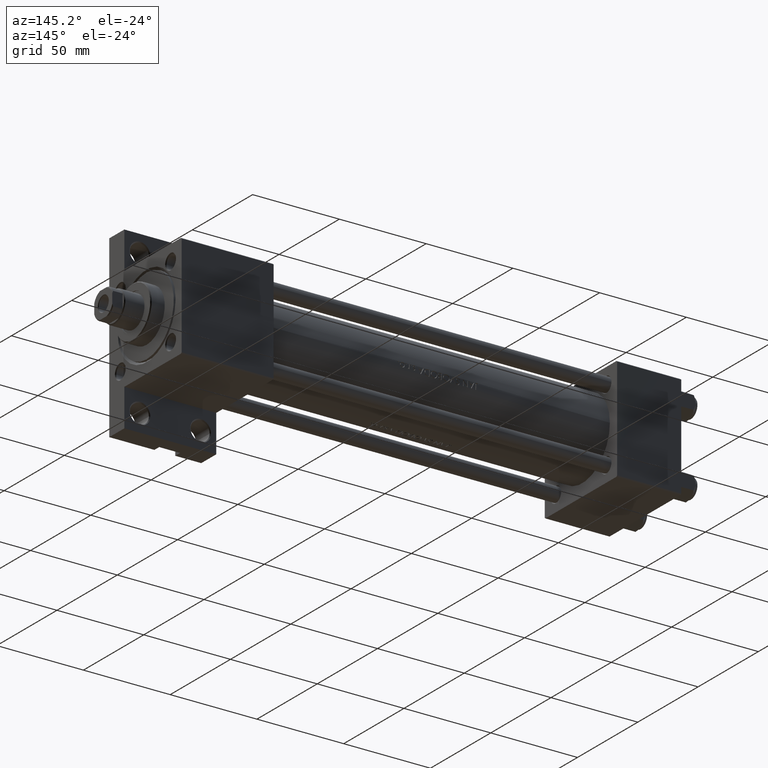
[diagram: clean part render]
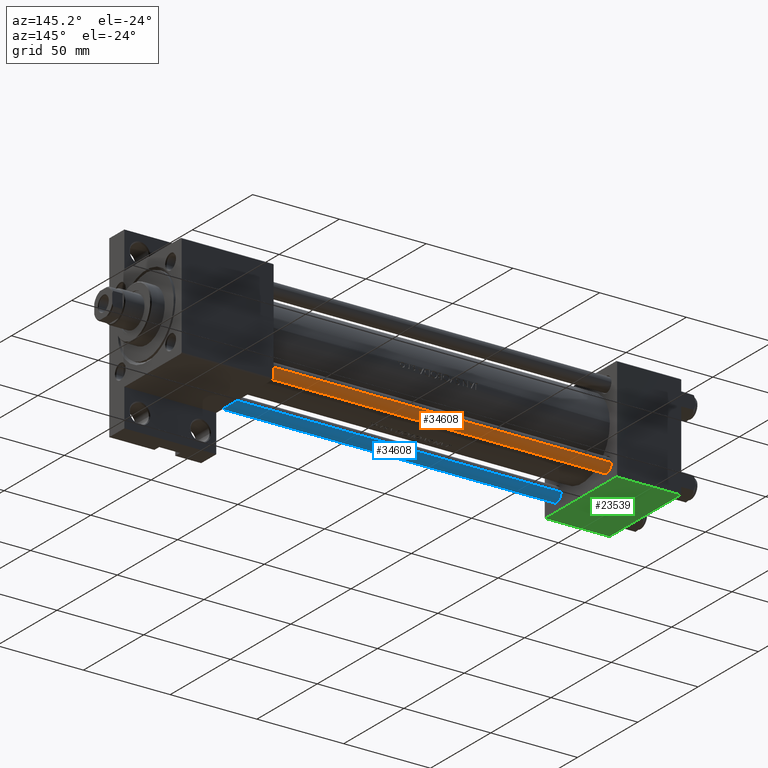
[diagram: same view with three faces highlighted in distinct colors, each labeled with its STEP entity id]
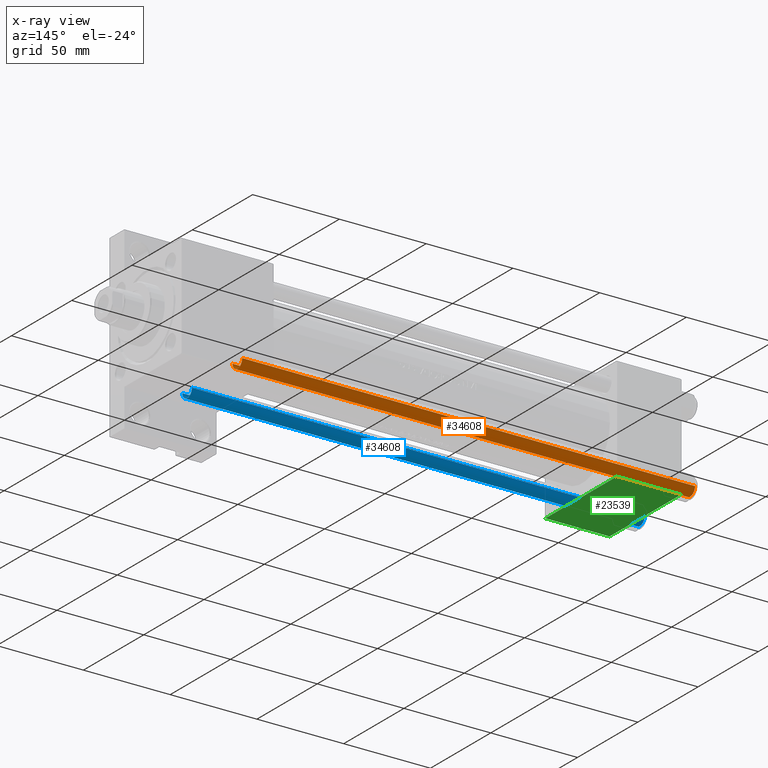
[diagram: x-ray of the same camera — body ghosted, the three highlighted faces saturated]
A machine part, auxiliary view with three faces highlighted in distinct colors.
The next image is the same camera in x-ray (body ghosted, the three faces saturated) — at least one of them is partly hidden behind the body in this view.
Their STEP definitions:

[orange] entity #34608 — the highlighted cylindrical surface (edge-blend (fillet) strip) has radius 4 mm, axis along (-1, -0, 0).
#402 = EDGE_CURVE ( 'NONE', #30187, #19255, #19753, .T. ) ;
#1052 = DIRECTION ( 'NONE',  ( 1.000000000000000000, 0.000000000000000000, 0.000000000000000000 ) ) ;
#3127 = CARTESIAN_POINT ( 'NONE',  ( 4.000000000000000000, 4.898587196589412829E-16, 261.5000000000000000 ) ) ;
#4140 = DIRECTION ( 'NONE',  ( -0.000000000000000000, -0.000000000000000000, 1.000000000000000000 ) ) ;
#4757 = CARTESIAN_POINT ( 'NONE',  ( 0.000000000000000000, 0.000000000000000000, 261.5000000000000000 ) ) ;
#5008 = VERTEX_POINT ( 'NONE', #26827 ) ;
#6126 = DIRECTION ( 'NONE',  ( -1.000000000000000000, 0.000000000000000000, 0.000000000000000000 ) ) ;
#6834 = LINE ( 'NONE', #21864, #14240 ) ;
#7954 = ORIENTED_EDGE ( 'NONE', *, *, #20651, .T. ) ;
#8916 = ORIENTED_EDGE ( 'NONE', *, *, #402, .F. ) ;
#9171 = AXIS2_PLACEMENT_3D ( 'NONE', #37938, #4140, #23377 ) ;
#12328 = CARTESIAN_POINT ( 'NONE',  ( 4.000000000000000000, 4.898587196589412829E-16, 0.5000000000000559552 ) ) ;
#13538 = FACE_OUTER_BOUND ( 'NONE', #16314, .T. ) ;
#13633 = ORIENTED_EDGE ( 'NONE', *, *, #33531, .T. ) ;
#14240 = VECTOR ( 'NONE', #48725, 1000.000000000000000 ) ;
#16048 = VECTOR ( 'NONE', #37535, 1000.000000000000000 ) ;
#16314 = EDGE_LOOP ( 'NONE', ( #8916, #25467, #13633, #7954 ) ) ;
#16983 = DIRECTION ( 'NONE',  ( -0.000000000000000000, -0.000000000000000000, -1.000000000000000000 ) ) ;
#19255 = VERTEX_POINT ( 'NONE', #12328 ) ;
#19753 = LINE ( 'NONE', #30137, #16048 ) ;
#20651 = EDGE_CURVE ( 'NONE', #5008, #19255, #28880, .T. ) ;
#21738 = AXIS2_PLACEMENT_3D ( 'NONE', #43837, #16983, #6126 ) ;
#21864 = CARTESIAN_POINT ( 'NONE',  ( -4.000000000000000000, 0.000000000000000000, 262.0000000000000000 ) ) ;
#23377 = DIRECTION ( 'NONE',  ( 1.000000000000000000, 0.000000000000000000, 0.000000000000000000 ) ) ;
#23747 = DIRECTION ( 'NONE',  ( 0.000000000000000000, 0.000000000000000000, -1.000000000000000000 ) ) ;
#25183 = AXIS2_PLACEMENT_3D ( 'NONE', #4757, #23747, #1052 ) ;
#25467 = ORIENTED_EDGE ( 'NONE', *, *, #28518, .T. ) ;
#26827 = CARTESIAN_POINT ( 'NONE',  ( -4.000000000000000000, 0.000000000000000000, 0.5000000000000559552 ) ) ;
#27809 = CARTESIAN_POINT ( 'NONE',  ( -4.000000000000000000, 0.000000000000000000, 261.5000000000000000 ) ) ;
#28095 = CYLINDRICAL_SURFACE ( 'NONE', #21738, 4.000000000000000000 ) ;
#28518 = EDGE_CURVE ( 'NONE', #30187, #47770, #37790, .T. ) ;
#28880 = CIRCLE ( 'NONE', #9171, 4.000000000000000000 ) ;
#30137 = CARTESIAN_POINT ( 'NONE',  ( 4.000000000000000000, 4.898587196589412829E-16, 262.0000000000000000 ) ) ;
#30187 = VERTEX_POINT ( 'NONE', #3127 ) ;
#33531 = EDGE_CURVE ( 'NONE', #47770, #5008, #6834, .T. ) ;
#34608 = ADVANCED_FACE ( 'NONE', ( #13538 ), #28095, .T. ) ;
#37535 = DIRECTION ( 'NONE',  ( -0.000000000000000000, -0.000000000000000000, -1.000000000000000000 ) ) ;
#37790 = CIRCLE ( 'NONE', #25183, 4.000000000000000000 ) ;
#37938 = CARTESIAN_POINT ( 'NONE',  ( 0.000000000000000000, 0.000000000000000000, 0.5000000000000559552 ) ) ;
#43837 = CARTESIAN_POINT ( 'NONE',  ( 0.000000000000000000, 0.000000000000000000, 262.0000000000000000 ) ) ;
#47770 = VERTEX_POINT ( 'NONE', #27809 ) ;
#48725 = DIRECTION ( 'NONE',  ( -0.000000000000000000, -0.000000000000000000, -1.000000000000000000 ) ) ;

[blue] entity #34608 — the highlighted cylindrical surface (edge-blend (fillet) strip) has radius 4 mm, axis along (1, 0, 0).
#402 = EDGE_CURVE ( 'NONE', #30187, #19255, #19753, .T. ) ;
#1052 = DIRECTION ( 'NONE',  ( 1.000000000000000000, 0.000000000000000000, 0.000000000000000000 ) ) ;
#3127 = CARTESIAN_POINT ( 'NONE',  ( 4.000000000000000000, 4.898587196589412829E-16, 261.5000000000000000 ) ) ;
#4140 = DIRECTION ( 'NONE',  ( -0.000000000000000000, -0.000000000000000000, 1.000000000000000000 ) ) ;
#4757 = CARTESIAN_POINT ( 'NONE',  ( 0.000000000000000000, 0.000000000000000000, 261.5000000000000000 ) ) ;
#5008 = VERTEX_POINT ( 'NONE', #26827 ) ;
#6126 = DIRECTION ( 'NONE',  ( -1.000000000000000000, 0.000000000000000000, 0.000000000000000000 ) ) ;
#6834 = LINE ( 'NONE', #21864, #14240 ) ;
#7954 = ORIENTED_EDGE ( 'NONE', *, *, #20651, .T. ) ;
#8916 = ORIENTED_EDGE ( 'NONE', *, *, #402, .F. ) ;
#9171 = AXIS2_PLACEMENT_3D ( 'NONE', #37938, #4140, #23377 ) ;
#12328 = CARTESIAN_POINT ( 'NONE',  ( 4.000000000000000000, 4.898587196589412829E-16, 0.5000000000000559552 ) ) ;
#13538 = FACE_OUTER_BOUND ( 'NONE', #16314, .T. ) ;
#13633 = ORIENTED_EDGE ( 'NONE', *, *, #33531, .T. ) ;
#14240 = VECTOR ( 'NONE', #48725, 1000.000000000000000 ) ;
#16048 = VECTOR ( 'NONE', #37535, 1000.000000000000000 ) ;
#16314 = EDGE_LOOP ( 'NONE', ( #8916, #25467, #13633, #7954 ) ) ;
#16983 = DIRECTION ( 'NONE',  ( -0.000000000000000000, -0.000000000000000000, -1.000000000000000000 ) ) ;
#19255 = VERTEX_POINT ( 'NONE', #12328 ) ;
#19753 = LINE ( 'NONE', #30137, #16048 ) ;
#20651 = EDGE_CURVE ( 'NONE', #5008, #19255, #28880, .T. ) ;
#21738 = AXIS2_PLACEMENT_3D ( 'NONE', #43837, #16983, #6126 ) ;
#21864 = CARTESIAN_POINT ( 'NONE',  ( -4.000000000000000000, 0.000000000000000000, 262.0000000000000000 ) ) ;
#23377 = DIRECTION ( 'NONE',  ( 1.000000000000000000, 0.000000000000000000, 0.000000000000000000 ) ) ;
#23747 = DIRECTION ( 'NONE',  ( 0.000000000000000000, 0.000000000000000000, -1.000000000000000000 ) ) ;
#25183 = AXIS2_PLACEMENT_3D ( 'NONE', #4757, #23747, #1052 ) ;
#25467 = ORIENTED_EDGE ( 'NONE', *, *, #28518, .T. ) ;
#26827 = CARTESIAN_POINT ( 'NONE',  ( -4.000000000000000000, 0.000000000000000000, 0.5000000000000559552 ) ) ;
#27809 = CARTESIAN_POINT ( 'NONE',  ( -4.000000000000000000, 0.000000000000000000, 261.5000000000000000 ) ) ;
#28095 = CYLINDRICAL_SURFACE ( 'NONE', #21738, 4.000000000000000000 ) ;
#28518 = EDGE_CURVE ( 'NONE', #30187, #47770, #37790, .T. ) ;
#28880 = CIRCLE ( 'NONE', #9171, 4.000000000000000000 ) ;
#30137 = CARTESIAN_POINT ( 'NONE',  ( 4.000000000000000000, 4.898587196589412829E-16, 262.0000000000000000 ) ) ;
#30187 = VERTEX_POINT ( 'NONE', #3127 ) ;
#33531 = EDGE_CURVE ( 'NONE', #47770, #5008, #6834, .T. ) ;
#34608 = ADVANCED_FACE ( 'NONE', ( #13538 ), #28095, .T. ) ;
#37535 = DIRECTION ( 'NONE',  ( -0.000000000000000000, -0.000000000000000000, -1.000000000000000000 ) ) ;
#37790 = CIRCLE ( 'NONE', #25183, 4.000000000000000000 ) ;
#37938 = CARTESIAN_POINT ( 'NONE',  ( 0.000000000000000000, 0.000000000000000000, 0.5000000000000559552 ) ) ;
#43837 = CARTESIAN_POINT ( 'NONE',  ( 0.000000000000000000, 0.000000000000000000, 262.0000000000000000 ) ) ;
#47770 = VERTEX_POINT ( 'NONE', #27809 ) ;
#48725 = DIRECTION ( 'NONE',  ( -0.000000000000000000, -0.000000000000000000, -1.000000000000000000 ) ) ;

[green] entity #23539 — the highlighted planar face has unit normal (0, 0, -1).
#326 = DIRECTION ( 'NONE',  ( 0.000000000000000000, 0.000000000000000000, -1.000000000000000000 ) ) ;
#1878 = CARTESIAN_POINT ( 'NONE',  ( 37.00000000000000000, 29.99999999999999289, 30.00000000000000000 ) ) ;
#2037 = VERTEX_POINT ( 'NONE', #12761 ) ;
#4567 = LINE ( 'NONE', #41560, #7870 ) ;
#5691 = VERTEX_POINT ( 'NONE', #12564 ) ;
#6875 = CARTESIAN_POINT ( 'NONE',  ( 37.00000000000000000, 29.99999999999999289, 30.00000000000000000 ) ) ;
#7870 = VECTOR ( 'NONE', #34668, 1000.000000000000000 ) ;
#9597 = DIRECTION ( 'NONE',  ( -0.000000000000000000, 1.000000000000000000, 0.000000000000000000 ) ) ;
#9832 = PLANE ( 'NONE',  #34449 ) ;
#9895 = VECTOR ( 'NONE', #31720, 1000.000000000000000 ) ;
#10377 = ORIENTED_EDGE ( 'NONE', *, *, #28132, .T. ) ;
#10671 = VERTEX_POINT ( 'NONE', #25481 ) ;
#12564 = CARTESIAN_POINT ( 'NONE',  ( 0.000000000000000000, 29.99999999999999289, 29.50000000000000000 ) ) ;
#12761 = CARTESIAN_POINT ( 'NONE',  ( 37.00000000000000000, 29.99999999999999289, -29.50000000000000000 ) ) ;
#18468 = EDGE_CURVE ( 'NONE', #10671, #2037, #32444, .T. ) ;
#20100 = ORIENTED_EDGE ( 'NONE', *, *, #46355, .T. ) ;
#23539 = ADVANCED_FACE ( 'NONE', ( #44099 ), #9832, .T. ) ;
#24325 = ORIENTED_EDGE ( 'NONE', *, *, #18468, .T. ) ;
#24953 = VECTOR ( 'NONE', #326, 1000.000000000000000 ) ;
#25481 = CARTESIAN_POINT ( 'NONE',  ( 37.00000000000000000, 29.99999999999999289, 29.50000000000000000 ) ) ;
#26240 = LINE ( 'NONE', #33882, #24953 ) ;
#27137 = LINE ( 'NONE', #35012, #34641 ) ;
#28039 = CARTESIAN_POINT ( 'NONE',  ( 0.000000000000000000, 29.99999999999999289, -29.50000000000000000 ) ) ;
#28132 = EDGE_CURVE ( 'NONE', #5691, #10671, #4567, .T. ) ;
#29232 = VERTEX_POINT ( 'NONE', #28039 ) ;
#31720 = DIRECTION ( 'NONE',  ( 0.000000000000000000, 0.000000000000000000, -1.000000000000000000 ) ) ;
#32444 = LINE ( 'NONE', #1878, #9895 ) ;
#32846 = ORIENTED_EDGE ( 'NONE', *, *, #36274, .F. ) ;
#33882 = CARTESIAN_POINT ( 'NONE',  ( 0.000000000000000000, 29.99999999999999289, 30.00000000000000000 ) ) ;
#34038 = DIRECTION ( 'NONE',  ( -1.000000000000000000, 0.000000000000000000, 0.000000000000000000 ) ) ;
#34449 = AXIS2_PLACEMENT_3D ( 'NONE', #6875, #9597, #36721 ) ;
#34641 = VECTOR ( 'NONE', #34038, 1000.000000000000000 ) ;
#34668 = DIRECTION ( 'NONE',  ( 1.000000000000000000, 0.000000000000000000, 0.000000000000000000 ) ) ;
#35012 = CARTESIAN_POINT ( 'NONE',  ( 37.00000000000000000, 29.99999999999999289, -29.50000000000000000 ) ) ;
#36274 = EDGE_CURVE ( 'NONE', #5691, #29232, #26240, .T. ) ;
#36721 = DIRECTION ( 'NONE',  ( 0.000000000000000000, -0.000000000000000000, 1.000000000000000000 ) ) ;
#41560 = CARTESIAN_POINT ( 'NONE',  ( 37.00000000000000000, 29.99999999999999289, 29.50000000000000000 ) ) ;
#44099 = FACE_OUTER_BOUND ( 'NONE', #45227, .T. ) ;
#45227 = EDGE_LOOP ( 'NONE', ( #24325, #20100, #32846, #10377 ) ) ;
#46355 = EDGE_CURVE ( 'NONE', #2037, #29232, #27137, .T. ) ;